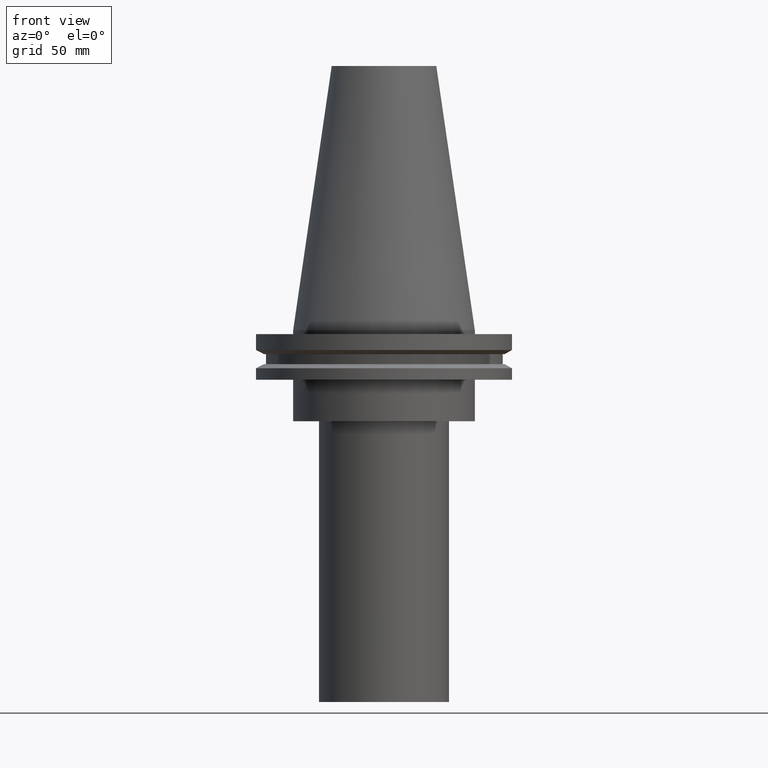
[diagram: clean part render]
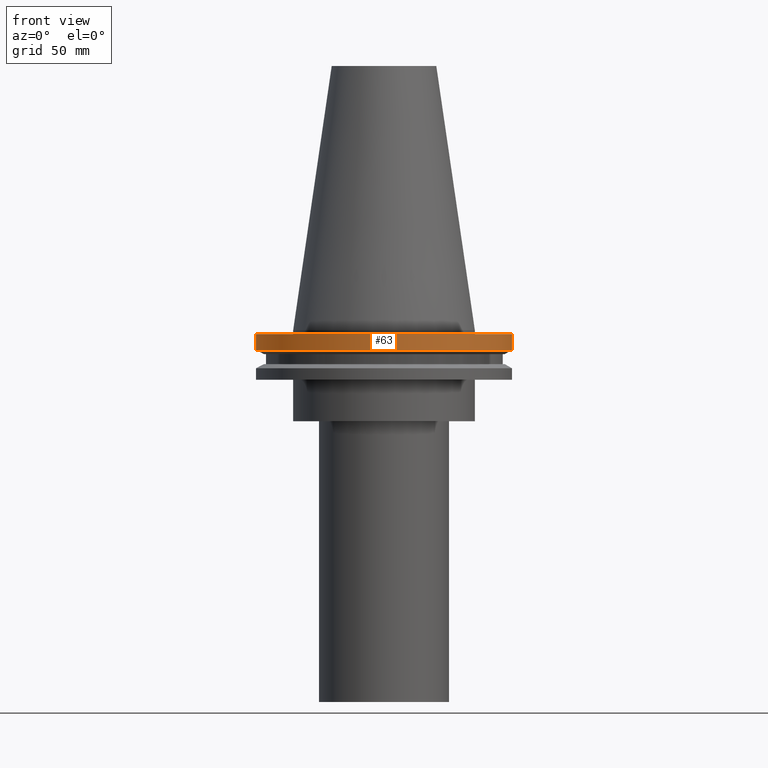
[diagram: same view with one face highlighted and labeled with its STEP entity id]
A machine part, front view. The second image highlights one B-rep face of the part: STEP entity #63.
In plain terms, the highlighted cylindrical surface (bore or boss wall) has radius 49.215 mm, axis along (-0, -0, 1).
Its self-contained STEP definition (entity closure, byte-faithful):
#11 = CARTESIAN_POINT ( 'NONE',  ( 0.000000000000000000, 0.000000000000000000, 101.5999999999999943 ) ) ;
#36 = DIRECTION ( 'NONE',  ( -0.000000000000000000, -0.000000000000000000, 1.000000000000000000 ) ) ;
#47 = DIRECTION ( 'NONE',  ( 1.000000000000000000, 0.000000000000000000, 0.000000000000000000 ) ) ;
#53 = ORIENTED_EDGE ( 'NONE', *, *, #207, .F. ) ;
#56 = ORIENTED_EDGE ( 'NONE', *, *, #270, .T. ) ;
#57 = AXIS2_PLACEMENT_3D ( 'NONE', #11, #36, #378 ) ;
#59 = VERTEX_POINT ( 'NONE', #338 ) ;
#63 = ADVANCED_FACE ( 'NONE', ( #357, #148 ), #193, .T. ) ;
#66 = DIRECTION ( 'NONE',  ( 1.000000000000000000, 0.000000000000000000, 0.000000000000000000 ) ) ;
#123 = CIRCLE ( 'NONE', #181, 49.21499999999999631 ) ;
#128 = VERTEX_POINT ( 'NONE', #307 ) ;
#148 = FACE_OUTER_BOUND ( 'NONE', #176, .T. ) ;
#176 = EDGE_LOOP ( 'NONE', ( #56 ) ) ;
#181 = AXIS2_PLACEMENT_3D ( 'NONE', #340, #191, #66 ) ;
#191 = DIRECTION ( 'NONE',  ( -0.000000000000000000, -0.000000000000000000, 1.000000000000000000 ) ) ;
#193 = CYLINDRICAL_SURFACE ( 'NONE', #57, 49.21499999999999631 ) ;
#199 = CIRCLE ( 'NONE', #202, 49.21500000000000341 ) ;
#202 = AXIS2_PLACEMENT_3D ( 'NONE', #237, #294, #47 ) ;
#207 = EDGE_CURVE ( 'NONE', #128, #128, #123, .T. ) ;
#237 = CARTESIAN_POINT ( 'NONE',  ( 0.000000000000000000, 0.000000000000000000, -7.602389855251287187 ) ) ;
#270 = EDGE_CURVE ( 'NONE', #59, #59, #199, .T. ) ;
#273 = EDGE_LOOP ( 'NONE', ( #53 ) ) ;
#294 = DIRECTION ( 'NONE',  ( -0.000000000000000000, -0.000000000000000000, 1.000000000000000000 ) ) ;
#307 = CARTESIAN_POINT ( 'NONE',  ( 49.21499999999999631, 0.000000000000000000, -1.499999999999987566 ) ) ;
#338 = CARTESIAN_POINT ( 'NONE',  ( 49.21500000000000341, 0.000000000000000000, -7.602389855251287187 ) ) ;
#340 = CARTESIAN_POINT ( 'NONE',  ( 0.000000000000000000, 0.000000000000000000, -1.499999999999987566 ) ) ;
#357 = FACE_OUTER_BOUND ( 'NONE', #273, .T. ) ;
#378 = DIRECTION ( 'NONE',  ( 1.000000000000000000, 0.000000000000000000, 0.000000000000000000 ) ) ;